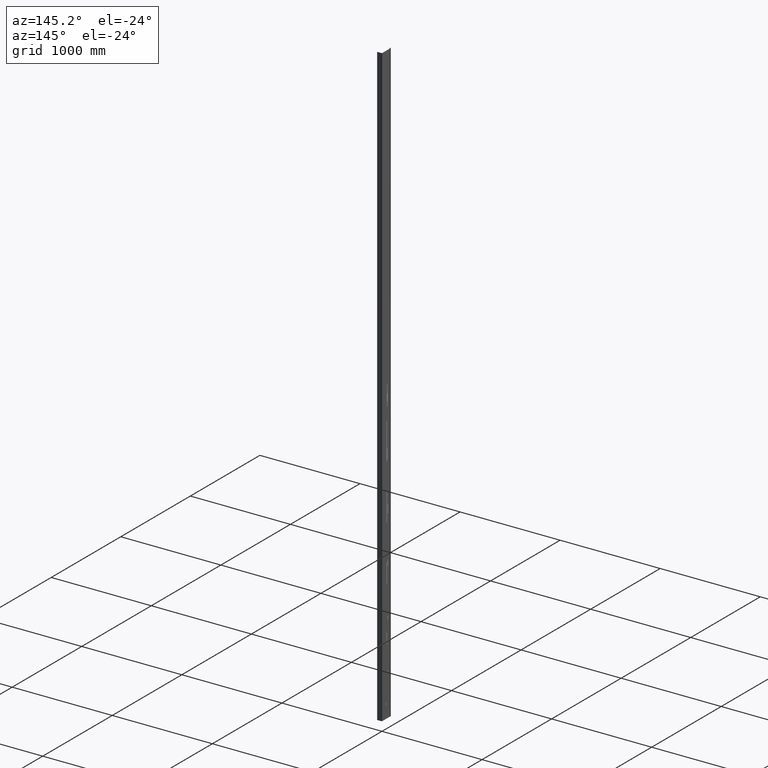
[diagram: clean part render]
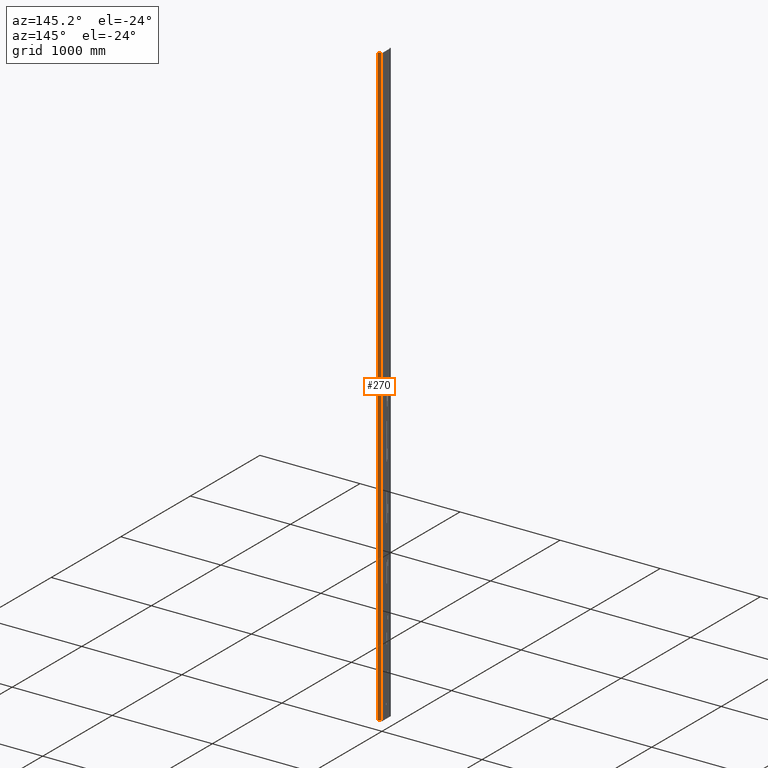
[diagram: same view with one face highlighted and labeled with its STEP entity id]
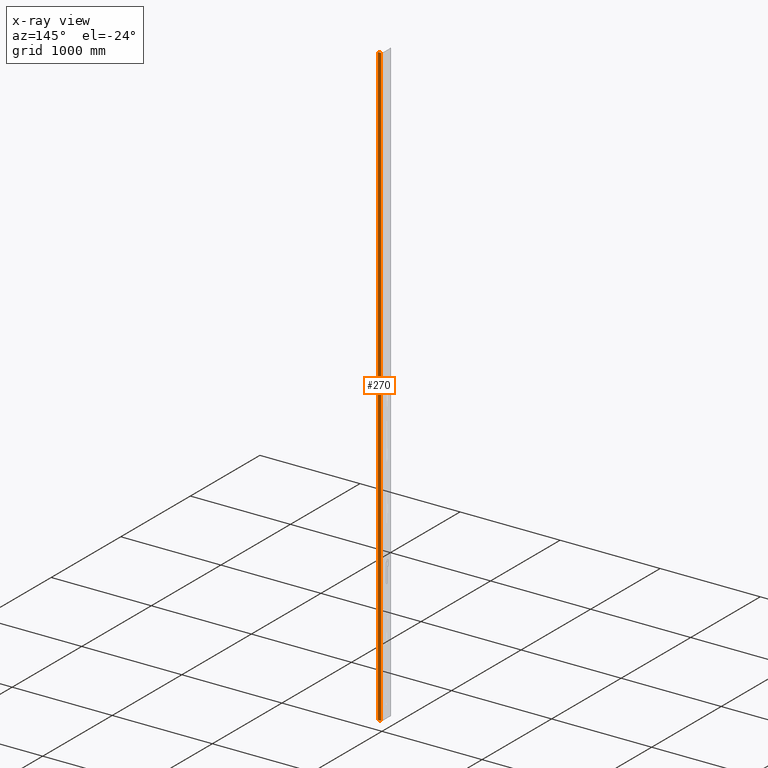
[diagram: x-ray of the same camera — body ghosted, the highlighted face saturated]
A machine part, auxiliary view. The second image highlights one B-rep face of the part: STEP entity #270.
The next image is the same camera in x-ray: the body ghosted, the highlighted face saturated — about 0% of this face is hidden behind the body in this view.
In plain terms, the highlighted planar face has unit normal (0, -1, 0).
Its self-contained STEP definition (entity closure, byte-faithful):
#67 = AXIS2_PLACEMENT_3D ( 'NONE', #3199, #4240, #12442 ) ;
#238 = VERTEX_POINT ( 'NONE', #12541 ) ;
#270 = ADVANCED_FACE ( 'NONE', ( #1346 ), #9405, .F. ) ;
#1346 = FACE_OUTER_BOUND ( 'NONE', #1710, .T. ) ;
#1710 = EDGE_LOOP ( 'NONE', ( #10465, #7234, #8258, #8546 ) ) ;
#1928 = CARTESIAN_POINT ( 'NONE',  ( 9.300000000017208300, 1.299999999990785400, -3000.000000000000000 ) ) ;
#1944 = VERTEX_POINT ( 'NONE', #1928 ) ;
#2943 = CARTESIAN_POINT ( 'NONE',  ( 42.89999999996870600, 1.299999999990789600, 3000.000000000000000 ) ) ;
#3199 = CARTESIAN_POINT ( 'NONE',  ( 42.89999999996870600, 1.299999999990789600, 3000.000000000000000 ) ) ;
#3272 = EDGE_CURVE ( 'NONE', #9310, #1944, #8286, .T. ) ;
#3323 = LINE ( 'NONE', #6217, #10836 ) ;
#3840 = VERTEX_POINT ( 'NONE', #2943 ) ;
#4240 = DIRECTION ( 'NONE',  ( 1.226181028407995000E-016, -1.000000000000000000, 0.0000000000000000000 ) ) ;
#4580 = VECTOR ( 'NONE', #6160, 1000.000000000000000 ) ;
#5096 = VECTOR ( 'NONE', #7035, 1000.000000000000000 ) ;
#5643 = EDGE_CURVE ( 'NONE', #3840, #9310, #10697, .T. ) ;
#6113 = CARTESIAN_POINT ( 'NONE',  ( 42.89999999996870600, 1.299999999990789600, -3000.000000000000000 ) ) ;
#6160 = DIRECTION ( 'NONE',  ( -1.000000000000000000, -1.226181028407995000E-016, 0.0000000000000000000 ) ) ;
#6217 = CARTESIAN_POINT ( 'NONE',  ( 9.300000000017208300, 1.299999999990785400, 3000.000000000000000 ) ) ;
#6313 = DIRECTION ( 'NONE',  ( -0.0000000000000000000, -0.0000000000000000000, -1.000000000000000000 ) ) ;
#6962 = VECTOR ( 'NONE', #12987, 1000.000000000000000 ) ;
#7035 = DIRECTION ( 'NONE',  ( -1.000000000000000000, -1.226181028407995000E-016, 0.0000000000000000000 ) ) ;
#7234 = ORIENTED_EDGE ( 'NONE', *, *, #12826, .F. ) ;
#8258 = ORIENTED_EDGE ( 'NONE', *, *, #11559, .F. ) ;
#8286 = LINE ( 'NONE', #6113, #4580 ) ;
#8546 = ORIENTED_EDGE ( 'NONE', *, *, #5643, .T. ) ;
#9310 = VERTEX_POINT ( 'NONE', #10073 ) ;
#9405 = PLANE ( 'NONE',  #67 ) ;
#10073 = CARTESIAN_POINT ( 'NONE',  ( 42.89999999996870600, 1.299999999990789600, -3000.000000000000000 ) ) ;
#10465 = ORIENTED_EDGE ( 'NONE', *, *, #3272, .T. ) ;
#10697 = LINE ( 'NONE', #10842, #6962 ) ;
#10836 = VECTOR ( 'NONE', #6313, 1000.000000000000000 ) ;
#10842 = CARTESIAN_POINT ( 'NONE',  ( 42.89999999996870600, 1.299999999990789600, 3000.000000000000000 ) ) ;
#11127 = LINE ( 'NONE', #13308, #5096 ) ;
#11559 = EDGE_CURVE ( 'NONE', #3840, #238, #11127, .T. ) ;
#12442 = DIRECTION ( 'NONE',  ( 1.000000000000000000, 1.226181028407995000E-016, 0.0000000000000000000 ) ) ;
#12541 = CARTESIAN_POINT ( 'NONE',  ( 9.300000000017208300, 1.299999999990785400, 3000.000000000000000 ) ) ;
#12826 = EDGE_CURVE ( 'NONE', #238, #1944, #3323, .T. ) ;
#12987 = DIRECTION ( 'NONE',  ( -0.0000000000000000000, -0.0000000000000000000, -1.000000000000000000 ) ) ;
#13308 = CARTESIAN_POINT ( 'NONE',  ( 42.89999999996870600, 1.299999999990789600, 3000.000000000000000 ) ) ;